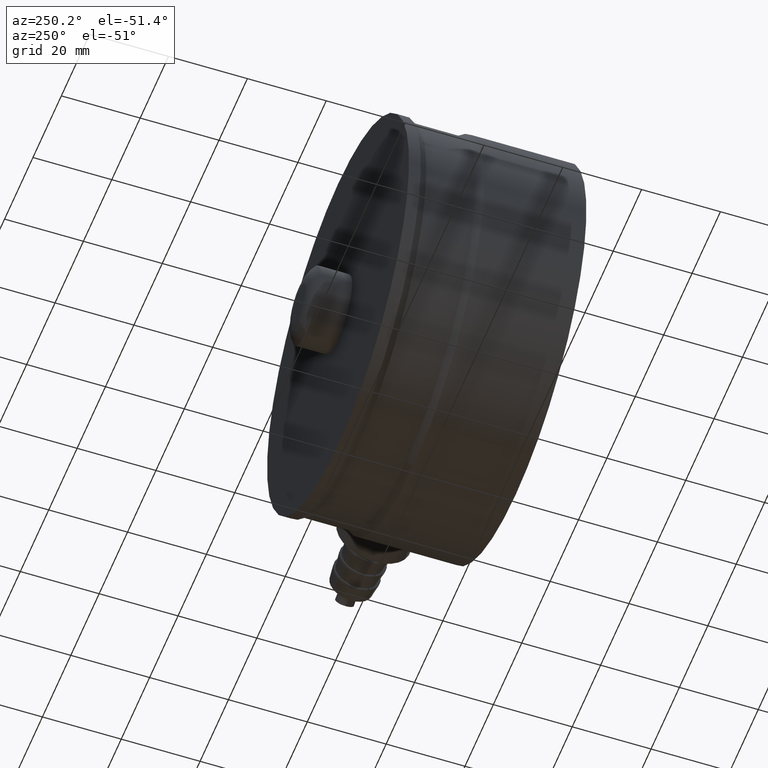
[diagram: clean part render]
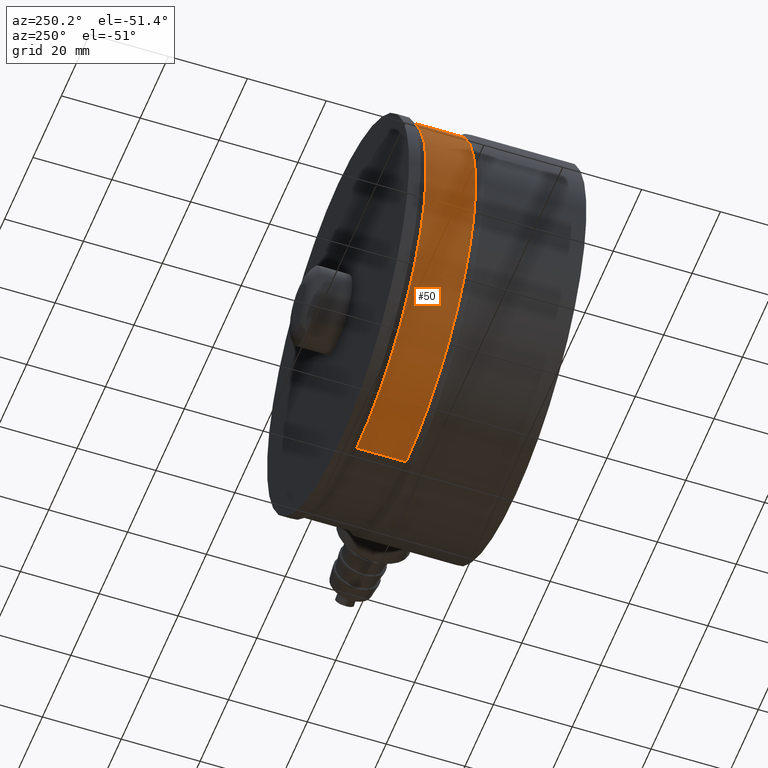
[diagram: same view with one face highlighted and labeled with its STEP entity id]
A machine part, auxiliary view. The second image highlights one B-rep face of the part: STEP entity #50.
In plain terms, the highlighted cylindrical surface (partial cylindrical patch) has radius 49 mm, axis along (0, -1, 0).
Its self-contained STEP definition (entity closure, byte-faithful):
#41 = EDGE_CURVE ( 'NONE', #133, #84, #536, .T. ) ;
#47 = ORIENTED_EDGE ( 'NONE', *, *, #99, .T. ) ;
#48 = ORIENTED_EDGE ( 'NONE', *, *, #41, .T. ) ;
#49 = ORIENTED_EDGE ( 'NONE', *, *, #93, .F. ) ;
#50 = ADVANCED_FACE ( 'NONE', ( #563 ), #510, .T. ) ;
#52 = EDGE_LOOP ( 'NONE', ( #49, #48, #47, #426 ) ) ;
#67 = VERTEX_POINT ( 'NONE', #538 ) ;
#69 = VERTEX_POINT ( 'NONE', #537 ) ;
#84 = VERTEX_POINT ( 'NONE', #527 ) ;
#93 = EDGE_CURVE ( 'NONE', #133, #69, #487, .T. ) ;
#99 = EDGE_CURVE ( 'NONE', #84, #67, #560, .T. ) ;
#133 = VERTEX_POINT ( 'NONE', #670 ) ;
#426 = ORIENTED_EDGE ( 'NONE', *, *, #427, .T. ) ;
#427 = EDGE_CURVE ( 'NONE', #67, #69, #1554, .T. ) ;
#481 = VECTOR ( 'NONE', #561, 1000.000000000000000 ) ;
#482 = CARTESIAN_POINT ( 'NONE',  ( 6.000571133729647800E-015, 179.5929291125633000, 49.00000000000000000 ) ) ;
#487 = LINE ( 'NONE', #482, #481 ) ;
#505 = CARTESIAN_POINT ( 'NONE',  ( 0.0000000000000000000, 179.5929291125633000, 0.0000000000000000000 ) ) ;
#509 = DIRECTION ( 'NONE',  ( 0.0000000000000000000, 0.0000000000000000000, -1.000000000000000000 ) ) ;
#510 = CYLINDRICAL_SURFACE ( 'NONE', #565, 49.00000000000000000 ) ;
#527 = CARTESIAN_POINT ( 'NONE',  ( 6.061801451420768200E-015, 36.26794919243107500, -49.00000000000000000 ) ) ;
#530 = CARTESIAN_POINT ( 'NONE',  ( 0.0000000000000000000, 36.26794919243107500, 0.0000000000000000000 ) ) ;
#535 = AXIS2_PLACEMENT_3D ( 'NONE', #530, #582, #581 ) ;
#536 = CIRCLE ( 'NONE', #535, 49.00000000000000000 ) ;
#537 = CARTESIAN_POINT ( 'NONE',  ( 6.000571133729647800E-015, 23.73205080756890300, 49.00000000000000000 ) ) ;
#538 = CARTESIAN_POINT ( 'NONE',  ( 0.0000000000000000000, 23.73205080756890300, -49.00000000000000000 ) ) ;
#557 = DIRECTION ( 'NONE',  ( 0.0000000000000000000, -1.000000000000000000, 0.0000000000000000000 ) ) ;
#558 = VECTOR ( 'NONE', #557, 1000.000000000000000 ) ;
#559 = CARTESIAN_POINT ( 'NONE',  ( 0.0000000000000000000, 179.5929291125633000, -49.00000000000000000 ) ) ;
#560 = LINE ( 'NONE', #559, #558 ) ;
#561 = DIRECTION ( 'NONE',  ( 0.0000000000000000000, -1.000000000000000000, 0.0000000000000000000 ) ) ;
#563 = FACE_OUTER_BOUND ( 'NONE', #52, .T. ) ;
#564 = DIRECTION ( 'NONE',  ( 0.0000000000000000000, -1.000000000000000000, 0.0000000000000000000 ) ) ;
#565 = AXIS2_PLACEMENT_3D ( 'NONE', #505, #564, #509 ) ;
#581 = DIRECTION ( 'NONE',  ( 0.0000000000000000000, 0.0000000000000000000, 1.000000000000000000 ) ) ;
#582 = DIRECTION ( 'NONE',  ( -0.0000000000000000000, -1.000000000000000000, -0.0000000000000000000 ) ) ;
#670 = CARTESIAN_POINT ( 'NONE',  ( 0.0000000000000000000, 36.26794919243107500, 49.00000000000000000 ) ) ;
#1554 = CIRCLE ( 'NONE', #1578, 49.00000000000000000 ) ;
#1558 = DIRECTION ( 'NONE',  ( 0.0000000000000000000, 1.000000000000000000, 0.0000000000000000000 ) ) ;
#1578 = AXIS2_PLACEMENT_3D ( 'NONE', #1581, #1558, #1583 ) ;
#1581 = CARTESIAN_POINT ( 'NONE',  ( 0.0000000000000000000, 23.73205080756890300, 0.0000000000000000000 ) ) ;
#1583 = DIRECTION ( 'NONE',  ( 0.0000000000000000000, 0.0000000000000000000, -1.000000000000000000 ) ) ;